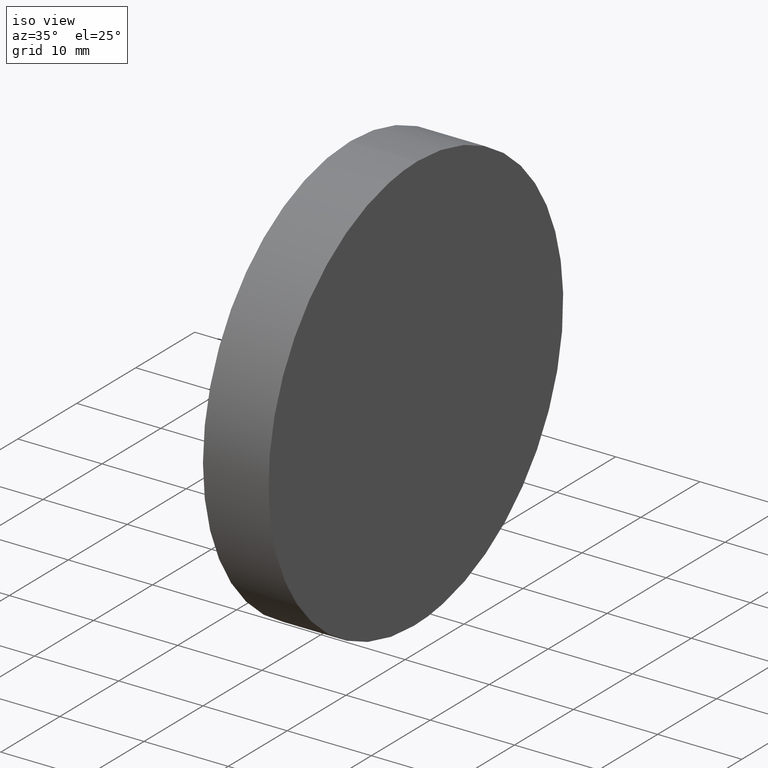
[diagram: clean part render]
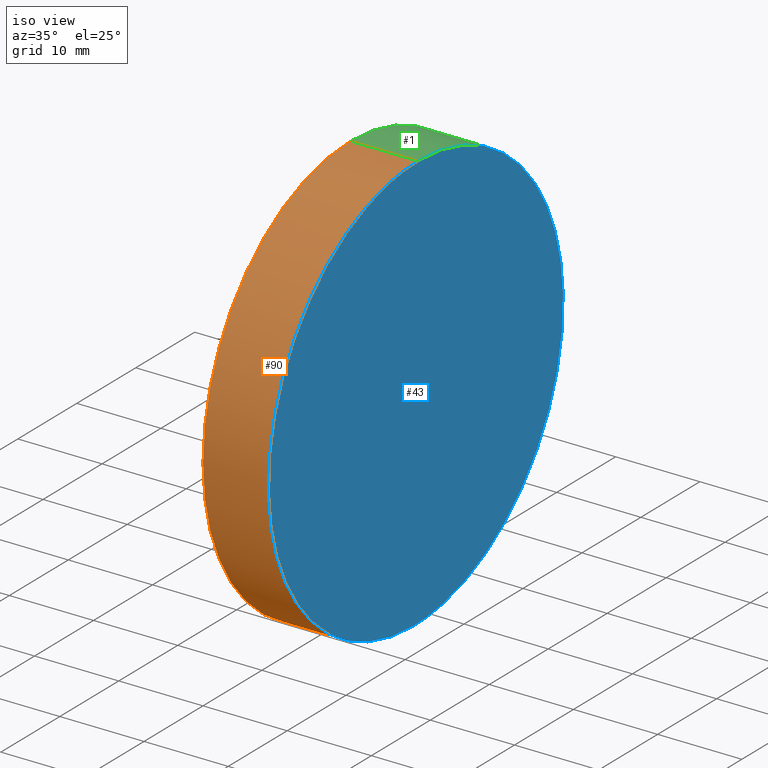
[diagram: same view with three faces highlighted in distinct colors, each labeled with its STEP entity id]
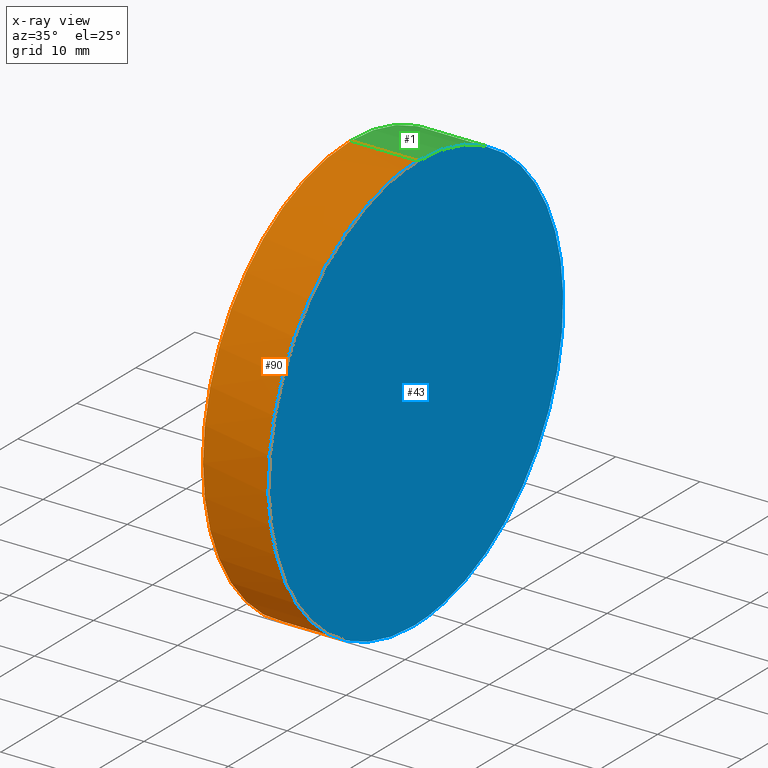
[diagram: x-ray of the same camera — body ghosted, the three highlighted faces saturated]
A machine part, iso view with three faces highlighted in distinct colors.
The next image is the same camera in x-ray (body ghosted, the three faces saturated) — at least one of them is partly hidden behind the body in this view.
Their STEP definitions:

[orange] entity #90 — the highlighted cylindrical surface (partial cylindrical patch) has radius 25 mm, axis along (-1, -0, -0).
#5 = VERTEX_POINT ( 'NONE', #78 ) ;
#6 = DIRECTION ( 'NONE',  ( -1.000000000000000000, -0.0000000000000000000, -0.0000000000000000000 ) ) ;
#7 = AXIS2_PLACEMENT_3D ( 'NONE', #101, #15, #48 ) ;
#10 = ORIENTED_EDGE ( 'NONE', *, *, #89, .T. ) ;
#14 = ORIENTED_EDGE ( 'NONE', *, *, #54, .T. ) ;
#15 = DIRECTION ( 'NONE',  ( -1.000000000000000000, -0.0000000000000000000, -0.0000000000000000000 ) ) ;
#16 = CARTESIAN_POINT ( 'NONE',  ( 7.563656610462413900, 25.00000000000000400, -25.00000000000000000 ) ) ;
#21 = VECTOR ( 'NONE', #6, 1000.000000000000000 ) ;
#29 = CARTESIAN_POINT ( 'NONE',  ( 0.0000000000000000000, 25.00000000000000400, -25.00000000000000000 ) ) ;
#35 = DIRECTION ( 'NONE',  ( 0.0000000000000000000, 0.0000000000000000000, 1.000000000000000000 ) ) ;
#39 = DIRECTION ( 'NONE',  ( -1.000000000000000000, -0.0000000000000000000, -0.0000000000000000000 ) ) ;
#44 = CARTESIAN_POINT ( 'NONE',  ( 7.563656610462413900, -25.00000000000001100, -25.00000000000000000 ) ) ;
#45 = LINE ( 'NONE', #126, #132 ) ;
#46 = VERTEX_POINT ( 'NONE', #29 ) ;
#48 = DIRECTION ( 'NONE',  ( 0.0000000000000000000, 0.0000000000000000000, 1.000000000000000000 ) ) ;
#54 = EDGE_CURVE ( 'NONE', #109, #95, #106, .T. ) ;
#63 = ORIENTED_EDGE ( 'NONE', *, *, #110, .F. ) ;
#67 = CARTESIAN_POINT ( 'NONE',  ( 0.0000000000000000000, 25.00000000000000000, 0.0000000000000000000 ) ) ;
#68 = CARTESIAN_POINT ( 'NONE',  ( 12.50000000000000000, 25.00000000000000000, 25.00000000000000000 ) ) ;
#70 = EDGE_CURVE ( 'NONE', #109, #46, #45, .T. ) ;
#71 = EDGE_LOOP ( 'NONE', ( #123, #14, #10, #63 ) ) ;
#73 = CYLINDRICAL_SURFACE ( 'NONE', #7, 25.00000000000000000 ) ;
#74 = CIRCLE ( 'NONE', #134, 25.00000000000000000 ) ;
#76 = DIRECTION ( 'NONE',  ( -1.000000000000000000, 0.0000000000000000000, 0.0000000000000000000 ) ) ;
#78 = CARTESIAN_POINT ( 'NONE',  ( 0.0000000000000000000, 25.00000000000000000, 25.00000000000000000 ) ) ;
#86 = CARTESIAN_POINT ( 'NONE',  ( 8.000000000000005300, 25.00000000000000000, 25.00000000000000000 ) ) ;
#89 = EDGE_CURVE ( 'NONE', #95, #5, #107, .T. ) ;
#90 = ADVANCED_FACE ( 'NONE', ( #117 ), #73, .T. ) ;
#95 = VERTEX_POINT ( 'NONE', #125 ) ;
#100 = CARTESIAN_POINT ( 'NONE',  ( 7.563656610462413900, 25.00000000000000400, -25.00000000000000000 ) ) ;
#101 = CARTESIAN_POINT ( 'NONE',  ( 12.50000000000000000, 25.00000000000000000, 0.0000000000000000000 ) ) ;
#106 =( BOUNDED_CURVE ( )  B_SPLINE_CURVE ( 3, ( #16, #44, #108, #86 ),
 .UNSPECIFIED., .F., .T. ) 
 B_SPLINE_CURVE_WITH_KNOTS ( ( 4, 4 ),
 ( 0.0000000000000000000, 3.141592653589793100 ),
 .UNSPECIFIED. ) 
 CURVE ( )  GEOMETRIC_REPRESENTATION_ITEM ( )  RATIONAL_B_SPLINE_CURVE ( ( 1.000000000000000000, 0.3333333333333333700, 0.3333333333333333700, 1.000000000000000000 ) ) 
 REPRESENTATION_ITEM ( '' )  );
#107 = LINE ( 'NONE', #68, #21 ) ;
#108 = CARTESIAN_POINT ( 'NONE',  ( 8.000000000000005300, -25.00000000000001100, 25.00000000000000000 ) ) ;
#109 = VERTEX_POINT ( 'NONE', #100 ) ;
#110 = EDGE_CURVE ( 'NONE', #46, #5, #74, .T. ) ;
#117 = FACE_OUTER_BOUND ( 'NONE', #71, .T. ) ;
#123 = ORIENTED_EDGE ( 'NONE', *, *, #70, .F. ) ;
#125 = CARTESIAN_POINT ( 'NONE',  ( 8.000000000000005300, 25.00000000000000000, 25.00000000000000000 ) ) ;
#126 = CARTESIAN_POINT ( 'NONE',  ( 12.50000000000000000, 25.00000000000000400, -25.00000000000000000 ) ) ;
#132 = VECTOR ( 'NONE', #39, 1000.000000000000000 ) ;
#134 = AXIS2_PLACEMENT_3D ( 'NONE', #67, #76, #35 ) ;

[blue] entity #43 — the highlighted planar face has unit normal (-1, 0, 0.0087).
#13 =( BOUNDED_CURVE ( )  B_SPLINE_CURVE ( 3, ( #137, #85, #111, #124 ),
 .UNSPECIFIED., .F., .T. ) 
 B_SPLINE_CURVE_WITH_KNOTS ( ( 4, 4 ),
 ( 3.141592653589793100, 6.283185307179586200 ),
 .UNSPECIFIED. ) 
 CURVE ( )  GEOMETRIC_REPRESENTATION_ITEM ( )  RATIONAL_B_SPLINE_CURVE ( ( 1.000000000000000000, 0.3333333333333333700, 0.3333333333333333700, 1.000000000000000000 ) ) 
 REPRESENTATION_ITEM ( '' )  );
#16 = CARTESIAN_POINT ( 'NONE',  ( 7.563656610462413900, 25.00000000000000400, -25.00000000000000000 ) ) ;
#30 = PLANE ( 'NONE',  #61 ) ;
#41 = DIRECTION ( 'NONE',  ( -0.9999619230641714200, 0.0000000000000000000, 0.008726535498366983600 ) ) ;
#43 = ADVANCED_FACE ( 'NONE', ( #75 ), #30, .F. ) ;
#44 = CARTESIAN_POINT ( 'NONE',  ( 7.563656610462413900, -25.00000000000001100, -25.00000000000000000 ) ) ;
#54 = EDGE_CURVE ( 'NONE', #109, #95, #106, .T. ) ;
#59 = DIRECTION ( 'NONE',  ( 0.008726535498366981900, 0.0000000000000000000, 0.9999619230641713100 ) ) ;
#61 = AXIS2_PLACEMENT_3D ( 'NONE', #116, #41, #59 ) ;
#75 = FACE_OUTER_BOUND ( 'NONE', #84, .T. ) ;
#84 = EDGE_LOOP ( 'NONE', ( #91, #121 ) ) ;
#85 = CARTESIAN_POINT ( 'NONE',  ( 8.000000000000005300, 75.00000000000000000, 25.00000000000001100 ) ) ;
#86 = CARTESIAN_POINT ( 'NONE',  ( 8.000000000000005300, 25.00000000000000000, 25.00000000000000000 ) ) ;
#91 = ORIENTED_EDGE ( 'NONE', *, *, #122, .F. ) ;
#95 = VERTEX_POINT ( 'NONE', #125 ) ;
#100 = CARTESIAN_POINT ( 'NONE',  ( 7.563656610462413900, 25.00000000000000400, -25.00000000000000000 ) ) ;
#106 =( BOUNDED_CURVE ( )  B_SPLINE_CURVE ( 3, ( #16, #44, #108, #86 ),
 .UNSPECIFIED., .F., .T. ) 
 B_SPLINE_CURVE_WITH_KNOTS ( ( 4, 4 ),
 ( 0.0000000000000000000, 3.141592653589793100 ),
 .UNSPECIFIED. ) 
 CURVE ( )  GEOMETRIC_REPRESENTATION_ITEM ( )  RATIONAL_B_SPLINE_CURVE ( ( 1.000000000000000000, 0.3333333333333333700, 0.3333333333333333700, 1.000000000000000000 ) ) 
 REPRESENTATION_ITEM ( '' )  );
#108 = CARTESIAN_POINT ( 'NONE',  ( 8.000000000000005300, -25.00000000000001100, 25.00000000000000000 ) ) ;
#109 = VERTEX_POINT ( 'NONE', #100 ) ;
#111 = CARTESIAN_POINT ( 'NONE',  ( 7.563656610462413900, 75.00000000000000000, -25.00000000000000000 ) ) ;
#116 = CARTESIAN_POINT ( 'NONE',  ( 8.000000000000005300, 50.00000000000000000, 25.00000000000000000 ) ) ;
#121 = ORIENTED_EDGE ( 'NONE', *, *, #54, .F. ) ;
#122 = EDGE_CURVE ( 'NONE', #95, #109, #13, .T. ) ;
#124 = CARTESIAN_POINT ( 'NONE',  ( 7.563656610462413900, 25.00000000000000400, -25.00000000000000000 ) ) ;
#125 = CARTESIAN_POINT ( 'NONE',  ( 8.000000000000005300, 25.00000000000000000, 25.00000000000000000 ) ) ;
#137 = CARTESIAN_POINT ( 'NONE',  ( 8.000000000000005300, 25.00000000000000000, 25.00000000000000000 ) ) ;

[green] entity #1 — the highlighted cylindrical surface (partial cylindrical patch) has radius 25 mm, axis along (-1, -0, -0).
#1 = ADVANCED_FACE ( 'NONE', ( #23 ), #4, .T. ) ;
#4 = CYLINDRICAL_SURFACE ( 'NONE', #127, 25.00000000000000000 ) ;
#5 = VERTEX_POINT ( 'NONE', #78 ) ;
#6 = DIRECTION ( 'NONE',  ( -1.000000000000000000, -0.0000000000000000000, -0.0000000000000000000 ) ) ;
#12 = ORIENTED_EDGE ( 'NONE', *, *, #50, .F. ) ;
#13 =( BOUNDED_CURVE ( )  B_SPLINE_CURVE ( 3, ( #137, #85, #111, #124 ),
 .UNSPECIFIED., .F., .T. ) 
 B_SPLINE_CURVE_WITH_KNOTS ( ( 4, 4 ),
 ( 3.141592653589793100, 6.283185307179586200 ),
 .UNSPECIFIED. ) 
 CURVE ( )  GEOMETRIC_REPRESENTATION_ITEM ( )  RATIONAL_B_SPLINE_CURVE ( ( 1.000000000000000000, 0.3333333333333333700, 0.3333333333333333700, 1.000000000000000000 ) ) 
 REPRESENTATION_ITEM ( '' )  );
#17 = CARTESIAN_POINT ( 'NONE',  ( 12.50000000000000000, 25.00000000000000000, 0.0000000000000000000 ) ) ;
#21 = VECTOR ( 'NONE', #6, 1000.000000000000000 ) ;
#23 = FACE_OUTER_BOUND ( 'NONE', #55, .T. ) ;
#26 = DIRECTION ( 'NONE',  ( -1.000000000000000000, 0.0000000000000000000, 0.0000000000000000000 ) ) ;
#29 = CARTESIAN_POINT ( 'NONE',  ( 0.0000000000000000000, 25.00000000000000400, -25.00000000000000000 ) ) ;
#33 = CIRCLE ( 'NONE', #131, 25.00000000000000000 ) ;
#36 = ORIENTED_EDGE ( 'NONE', *, *, #70, .T. ) ;
#39 = DIRECTION ( 'NONE',  ( -1.000000000000000000, -0.0000000000000000000, -0.0000000000000000000 ) ) ;
#45 = LINE ( 'NONE', #126, #132 ) ;
#46 = VERTEX_POINT ( 'NONE', #29 ) ;
#50 = EDGE_CURVE ( 'NONE', #5, #46, #33, .T. ) ;
#55 = EDGE_LOOP ( 'NONE', ( #98, #36, #12, #66 ) ) ;
#66 = ORIENTED_EDGE ( 'NONE', *, *, #89, .F. ) ;
#68 = CARTESIAN_POINT ( 'NONE',  ( 12.50000000000000000, 25.00000000000000000, 25.00000000000000000 ) ) ;
#70 = EDGE_CURVE ( 'NONE', #109, #46, #45, .T. ) ;
#78 = CARTESIAN_POINT ( 'NONE',  ( 0.0000000000000000000, 25.00000000000000000, 25.00000000000000000 ) ) ;
#85 = CARTESIAN_POINT ( 'NONE',  ( 8.000000000000005300, 75.00000000000000000, 25.00000000000001100 ) ) ;
#89 = EDGE_CURVE ( 'NONE', #95, #5, #107, .T. ) ;
#95 = VERTEX_POINT ( 'NONE', #125 ) ;
#98 = ORIENTED_EDGE ( 'NONE', *, *, #122, .T. ) ;
#100 = CARTESIAN_POINT ( 'NONE',  ( 7.563656610462413900, 25.00000000000000400, -25.00000000000000000 ) ) ;
#103 = DIRECTION ( 'NONE',  ( 0.0000000000000000000, 0.0000000000000000000, 1.000000000000000000 ) ) ;
#107 = LINE ( 'NONE', #68, #21 ) ;
#109 = VERTEX_POINT ( 'NONE', #100 ) ;
#111 = CARTESIAN_POINT ( 'NONE',  ( 7.563656610462413900, 75.00000000000000000, -25.00000000000000000 ) ) ;
#113 = CARTESIAN_POINT ( 'NONE',  ( 0.0000000000000000000, 25.00000000000000000, 0.0000000000000000000 ) ) ;
#118 = DIRECTION ( 'NONE',  ( 0.0000000000000000000, 0.0000000000000000000, 1.000000000000000000 ) ) ;
#122 = EDGE_CURVE ( 'NONE', #95, #109, #13, .T. ) ;
#124 = CARTESIAN_POINT ( 'NONE',  ( 7.563656610462413900, 25.00000000000000400, -25.00000000000000000 ) ) ;
#125 = CARTESIAN_POINT ( 'NONE',  ( 8.000000000000005300, 25.00000000000000000, 25.00000000000000000 ) ) ;
#126 = CARTESIAN_POINT ( 'NONE',  ( 12.50000000000000000, 25.00000000000000400, -25.00000000000000000 ) ) ;
#127 = AXIS2_PLACEMENT_3D ( 'NONE', #17, #130, #118 ) ;
#130 = DIRECTION ( 'NONE',  ( -1.000000000000000000, -0.0000000000000000000, -0.0000000000000000000 ) ) ;
#131 = AXIS2_PLACEMENT_3D ( 'NONE', #113, #26, #103 ) ;
#132 = VECTOR ( 'NONE', #39, 1000.000000000000000 ) ;
#137 = CARTESIAN_POINT ( 'NONE',  ( 8.000000000000005300, 25.00000000000000000, 25.00000000000000000 ) ) ;